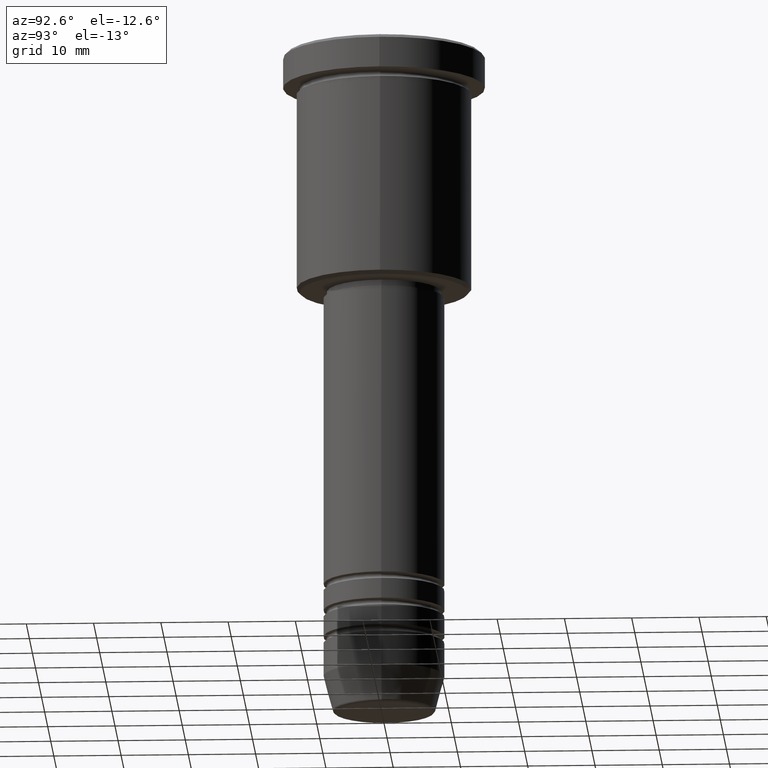
[diagram: clean part render]
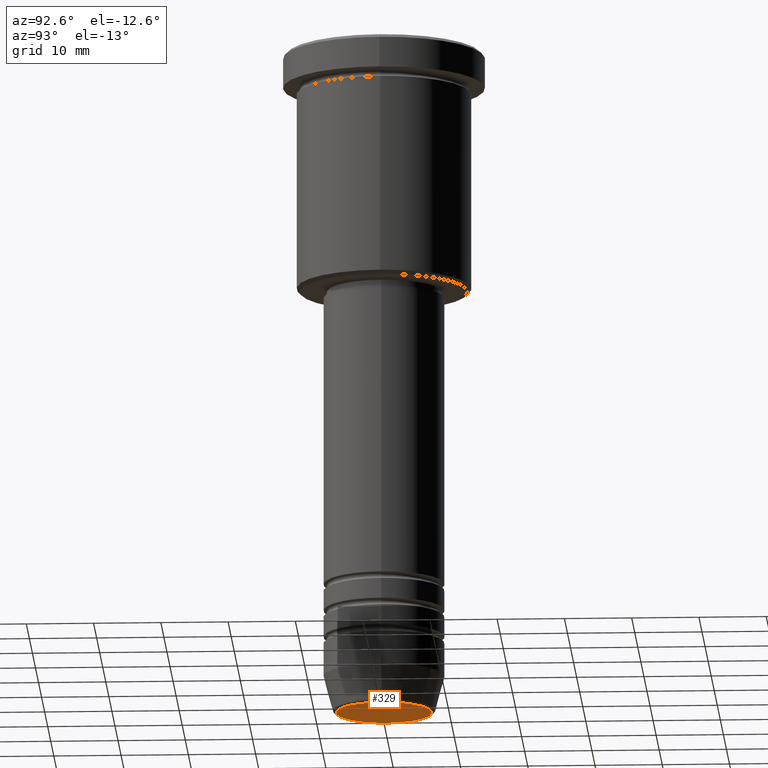
[diagram: same view with one face highlighted and labeled with its STEP entity id]
A machine part, auxiliary view. The second image highlights one B-rep face of the part: STEP entity #329.
In plain terms, the highlighted planar face has unit normal (0, -0, 1).
Its self-contained STEP definition (entity closure, byte-faithful):
#34 = EDGE_CURVE ( 'NONE', #895, #174, #495, .T. ) ;
#87 = PLANE ( 'NONE',  #384 ) ;
#174 = VERTEX_POINT ( 'NONE', #619 ) ;
#219 = CARTESIAN_POINT ( 'NONE',  ( 0.000000000000000000, 0.000000000000000000, -100.0000000000000000 ) ) ;
#228 = ORIENTED_EDGE ( 'NONE', *, *, #699, .T. ) ;
#238 = DIRECTION ( 'NONE',  ( 0.000000000000000000, 0.000000000000000000, -1.000000000000000000 ) ) ;
#261 = ORIENTED_EDGE ( 'NONE', *, *, #34, .T. ) ;
#283 = FACE_OUTER_BOUND ( 'NONE', #1177, .T. ) ;
#298 = CIRCLE ( 'NONE', #976, 7.142615947639340490 ) ;
#303 = AXIS2_PLACEMENT_3D ( 'NONE', #219, #868, #923 ) ;
#329 = ADVANCED_FACE ( 'NONE', ( #283 ), #87, .F. ) ;
#384 = AXIS2_PLACEMENT_3D ( 'NONE', #735, #1079, #1017 ) ;
#495 = CIRCLE ( 'NONE', #303, 7.142615947639340490 ) ;
#507 = CARTESIAN_POINT ( 'NONE',  ( 0.000000000000000000, 0.000000000000000000, -100.0000000000000000 ) ) ;
#586 = CARTESIAN_POINT ( 'NONE',  ( 7.142615947639340490, 0.000000000000000000, -100.0000000000000000 ) ) ;
#619 = CARTESIAN_POINT ( 'NONE',  ( -7.142615947639340490, 9.042911250660025544E-16, -100.0000000000000000 ) ) ;
#699 = EDGE_CURVE ( 'NONE', #174, #895, #298, .T. ) ;
#735 = CARTESIAN_POINT ( 'NONE',  ( 0.000000000000000000, 0.000000000000000000, -100.0000000000000000 ) ) ;
#868 = DIRECTION ( 'NONE',  ( 0.000000000000000000, 0.000000000000000000, -1.000000000000000000 ) ) ;
#874 = DIRECTION ( 'NONE',  ( 1.000000000000000000, 0.000000000000000000, 0.000000000000000000 ) ) ;
#895 = VERTEX_POINT ( 'NONE', #586 ) ;
#923 = DIRECTION ( 'NONE',  ( 1.000000000000000000, 0.000000000000000000, 0.000000000000000000 ) ) ;
#976 = AXIS2_PLACEMENT_3D ( 'NONE', #507, #238, #874 ) ;
#1017 = DIRECTION ( 'NONE',  ( 1.000000000000000000, 0.000000000000000000, 0.000000000000000000 ) ) ;
#1079 = DIRECTION ( 'NONE',  ( 0.000000000000000000, -0.000000000000000000, 1.000000000000000000 ) ) ;
#1177 = EDGE_LOOP ( 'NONE', ( #261, #228 ) ) ;